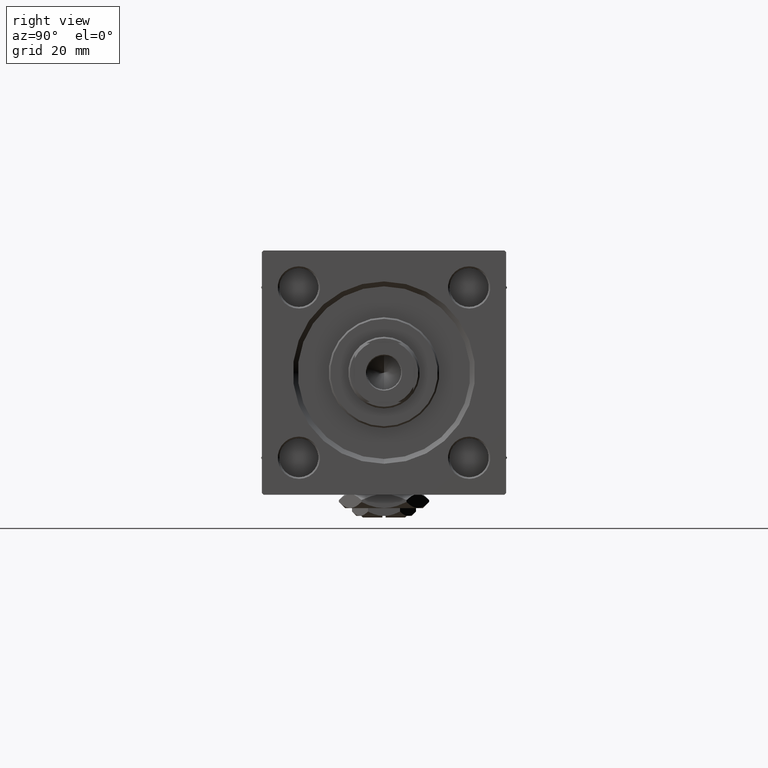
[diagram: clean part render]
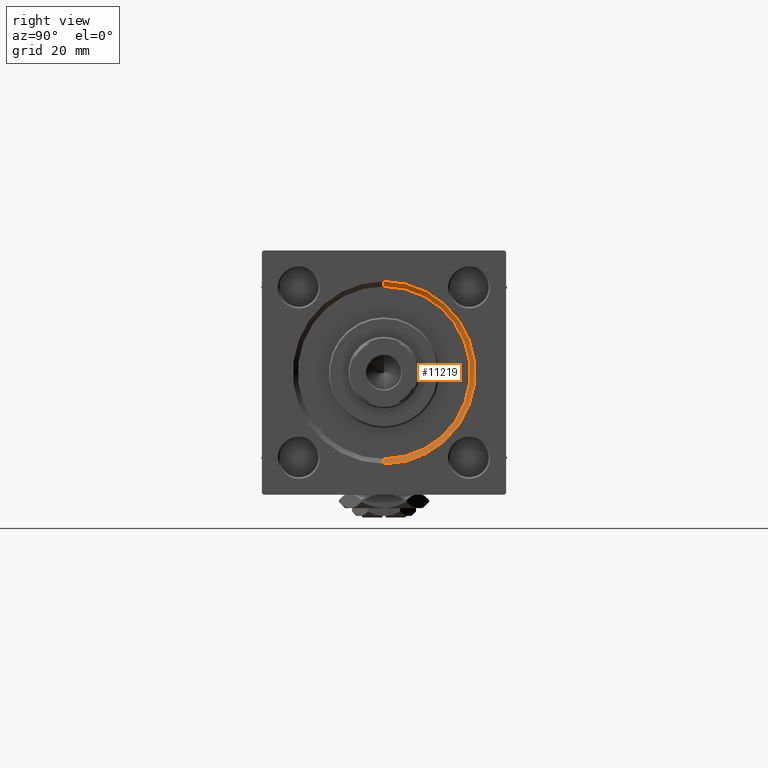
[diagram: same view with one face highlighted and labeled with its STEP entity id]
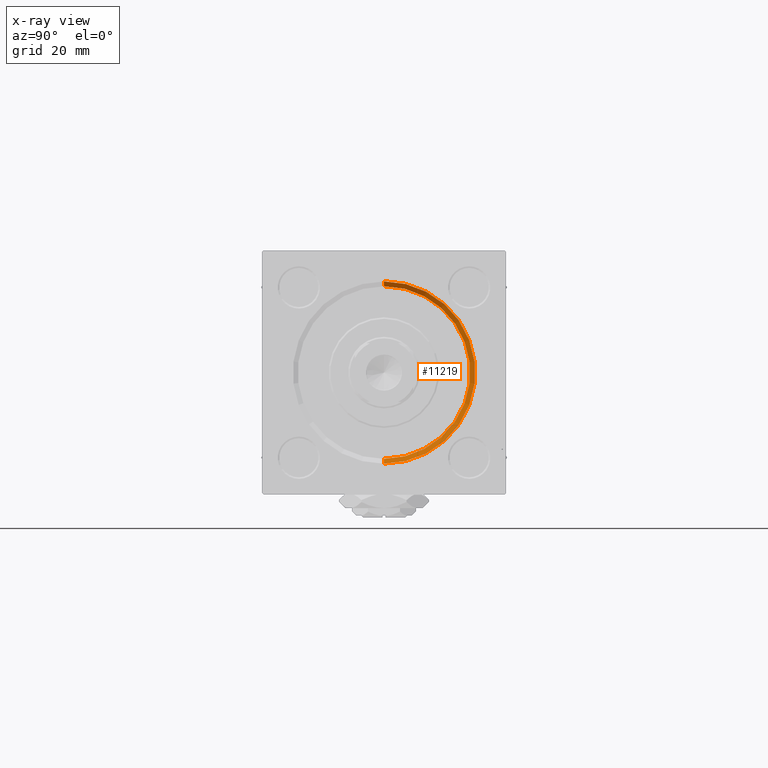
[diagram: x-ray of the same camera — body ghosted, the highlighted face saturated]
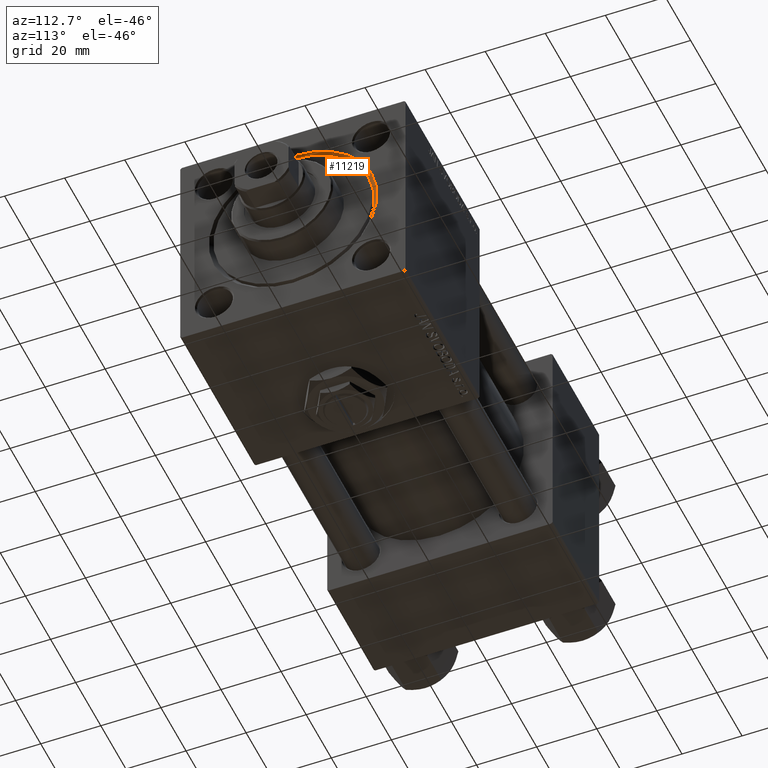
[diagram: same view with one face highlighted and labeled with its STEP entity id]
A machine part, right view. The second image highlights one B-rep face of the part: STEP entity #11219.
The next image is the same camera in x-ray: the body ghosted, the highlighted face saturated — about 0% of this face is hidden behind the body in this view.
A second angle (auxiliary view) of the same face is appended — the face is thin or edge-on in the first view.
In plain terms, the highlighted conical surface has half-angle 45 deg.
Its self-contained STEP definition (entity closure, byte-faithful):
#168 = VERTEX_POINT ( 'NONE', #45688 ) ;
#2195 = DIRECTION ( 'NONE',  ( 1.000000000000000000, 0.000000000000000000, 0.000000000000000000 ) ) ;
#3430 = DIRECTION ( 'NONE',  ( -1.000000000000000000, -0.000000000000000000, 0.000000000000000000 ) ) ;
#5207 = CARTESIAN_POINT ( 'NONE',  ( 152.5000000000000568, 0.000000000000000000, -26.50000000000000355 ) ) ;
#6136 = CARTESIAN_POINT ( 'NONE',  ( 152.5000000000000568, 0.000000000000000000, 0.000000000000000000 ) ) ;
#7153 = LINE ( 'NONE', #11333, #13095 ) ;
#7453 = VERTEX_POINT ( 'NONE', #19628 ) ;
#8866 = CARTESIAN_POINT ( 'NONE',  ( 152.5000000000000568, 3.245314017740486554E-15, 26.50000000000000355 ) ) ;
#11219 = ADVANCED_FACE ( 'NONE', ( #39065 ), #14542, .F. ) ;
#11333 = CARTESIAN_POINT ( 'NONE',  ( 152.5000000000000568, 0.000000000000000000, -26.50000000000000355 ) ) ;
#12549 = LINE ( 'NONE', #8866, #14271 ) ;
#13095 = VECTOR ( 'NONE', #27357, 1000.000000000000114 ) ;
#14271 = VECTOR ( 'NONE', #49277, 1000.000000000000114 ) ;
#14542 = CONICAL_SURFACE ( 'NONE', #41354, 26.50000000000000355, 0.7853981633974644883 ) ;
#15635 = VERTEX_POINT ( 'NONE', #5207 ) ;
#18086 = EDGE_CURVE ( 'NONE', #15635, #7453, #39784, .T. ) ;
#18358 = VERTEX_POINT ( 'NONE', #23389 ) ;
#19397 = CARTESIAN_POINT ( 'NONE',  ( 152.5000000000000568, 0.000000000000000000, 0.000000000000000000 ) ) ;
#19628 = CARTESIAN_POINT ( 'NONE',  ( 152.5000000000000568, 3.245314017740486554E-15, 26.50000000000000355 ) ) ;
#21363 = EDGE_CURVE ( 'NONE', #15635, #18358, #7153, .T. ) ;
#22880 = DIRECTION ( 'NONE',  ( 0.000000000000000000, 0.000000000000000000, 1.000000000000000000 ) ) ;
#23348 = AXIS2_PLACEMENT_3D ( 'NONE', #39377, #3430, #22880 ) ;
#23389 = CARTESIAN_POINT ( 'NONE',  ( 154.0000000000000000, 0.000000000000000000, -27.99999999999999645 ) ) ;
#27202 = AXIS2_PLACEMENT_3D ( 'NONE', #6136, #2195, #42591 ) ;
#27357 = DIRECTION ( 'NONE',  ( 0.7071067811865361374, 0.000000000000000000, -0.7071067811865588970 ) ) ;
#30553 = EDGE_LOOP ( 'NONE', ( #46233, #51519, #41707, #35112 ) ) ;
#30699 = DIRECTION ( 'NONE',  ( 0.000000000000000000, 0.000000000000000000, -1.000000000000000000 ) ) ;
#32212 = EDGE_CURVE ( 'NONE', #168, #18358, #45961, .T. ) ;
#35112 = ORIENTED_EDGE ( 'NONE', *, *, #32212, .F. ) ;
#39065 = FACE_OUTER_BOUND ( 'NONE', #30553, .T. ) ;
#39377 = CARTESIAN_POINT ( 'NONE',  ( 154.0000000000000000, 0.000000000000000000, 0.000000000000000000 ) ) ;
#39784 = CIRCLE ( 'NONE', #27202, 26.50000000000000355 ) ;
#39841 = EDGE_CURVE ( 'NONE', #7453, #168, #12549, .T. ) ;
#41354 = AXIS2_PLACEMENT_3D ( 'NONE', #19397, #50885, #30699 ) ;
#41707 = ORIENTED_EDGE ( 'NONE', *, *, #21363, .T. ) ;
#42591 = DIRECTION ( 'NONE',  ( 0.000000000000000000, 0.000000000000000000, 1.000000000000000000 ) ) ;
#45688 = CARTESIAN_POINT ( 'NONE',  ( 154.0000000000000000, 3.429011037612588881E-15, 27.99999999999999645 ) ) ;
#45961 = CIRCLE ( 'NONE', #23348, 27.99999999999999645 ) ;
#46233 = ORIENTED_EDGE ( 'NONE', *, *, #39841, .F. ) ;
#49277 = DIRECTION ( 'NONE',  ( 0.7071067811865361374, 8.659560562355073374E-17, 0.7071067811865588970 ) ) ;
#50885 = DIRECTION ( 'NONE',  ( 1.000000000000000000, 0.000000000000000000, 0.000000000000000000 ) ) ;
#51519 = ORIENTED_EDGE ( 'NONE', *, *, #18086, .F. ) ;